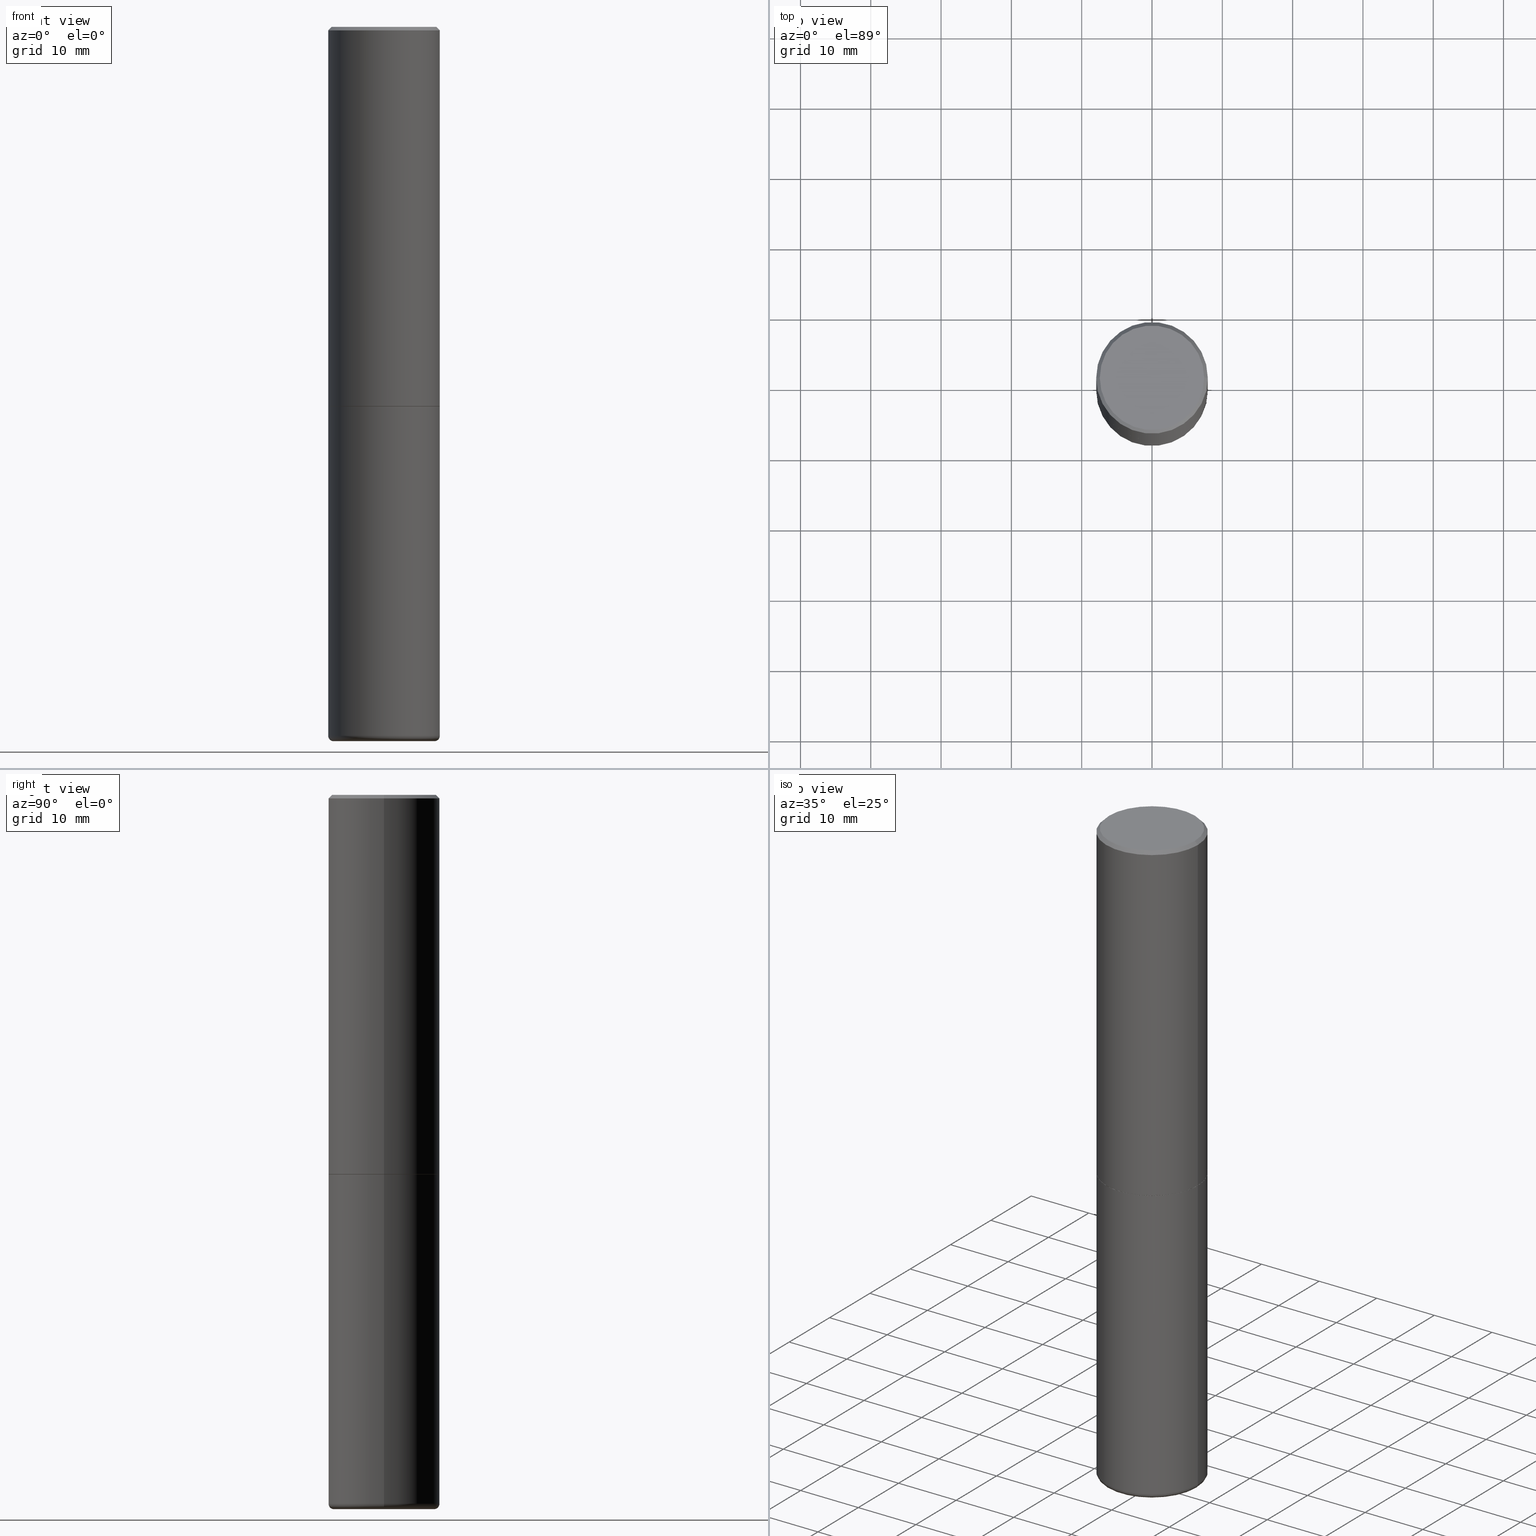
[diagram: canonical four-view strip — front | top / right | iso, engineering-drawing reading convention]
A machine part, canonical four-view strip (front | top / right | iso — engineering-drawing reading convention). The complete STEP part file that produces these views, byte-faithful:
ISO-10303-21;
HEADER;
FILE_DESCRIPTION (( 'STEP AP203' ),
    '1' );
FILE_NAME ('77392.STEP',
    '2024-05-02T19:35:23',
    ( '' ),
    ( '' ),
    'SwSTEP 2.0',
    'SolidWorks 2023',
    '' );
FILE_SCHEMA (( 'CONFIG_CONTROL_DESIGN' ));
ENDSEC;

DATA;
#1 = PERSON_AND_ORGANIZATION ( #171, #299 ) ;
#2 = DIRECTION ( 'NONE',  ( 1.000000000000000000, -6.982962677686269077E-15, 0.000000000000000000 ) ) ;
#3 = COORDINATED_UNIVERSAL_TIME_OFFSET ( 5, 0, .BEHIND. ) ;
#4 = CLOSED_SHELL ( 'NONE', ( #321, #278, #304, #398, #38, #393, #376, #82 ) ) ;
#5 = CARTESIAN_POINT ( 'NONE',  ( 0.3114999999999999991, -9.594590719140955956E-15, -2.125000000000000000 ) ) ;
#6 = FACE_OUTER_BOUND ( 'NONE', #79, .T. ) ;
#7 = CARTESIAN_POINT ( 'NONE',  ( 5.196621213143415268E-29, -7.419397845041683624E-15, -2.125000000000000000 ) ) ;
#8 = VERTEX_POINT ( 'NONE', #352 ) ;
#9 = AXIS2_PLACEMENT_3D ( 'NONE', #15, #369, #39 ) ;
#10 = EDGE_CURVE ( 'NONE', #112, #45, #99, .T. ) ;
#11 = DIRECTION ( 'NONE',  ( 1.000000000000000000, -6.982962677686265922E-15, 0.000000000000000000 ) ) ;
#12 = ORIENTED_EDGE ( 'NONE', *, *, #386, .F. ) ;
#13 = CARTESIAN_POINT ( 'NONE',  ( 5.196621213143415268E-29, -7.419397845041683624E-15, -2.125000000000000000 ) ) ;
#14 = EDGE_CURVE ( 'NONE', #8, #317, #253, .T. ) ;
#15 = CARTESIAN_POINT ( 'NONE',  ( 0.000000000000000000, 0.000000000000000000, 0.000000000000000000 ) ) ;
#16 = CARTESIAN_POINT ( 'NONE',  ( 9.708511160554992872E-29, -1.386118091520728738E-14, -3.970000000000000195 ) ) ;
#17 = ADVANCED_FACE ( 'NONE', ( #221 ), #187, .T. ) ;
#18 =( NAMED_UNIT ( * ) SI_UNIT ( $, .STERADIAN. ) SOLID_ANGLE_UNIT ( ) );
#19 = ORIENTED_EDGE ( 'NONE', *, *, #405, .F. ) ;
#20 = DIRECTION ( 'NONE',  ( 0.000000000000000000, 0.000000000000000000, 1.000000000000000000 ) ) ;
#21 = ORIENTED_EDGE ( 'NONE', *, *, #244, .F. ) ;
#22 = AXIS2_PLACEMENT_3D ( 'NONE', #312, #73, #11 ) ;
#23 = DATE_AND_TIME ( #318, #121 ) ;
#24 = ORIENTED_EDGE ( 'NONE', *, *, #374, .F. ) ;
#25 = EDGE_CURVE ( 'NONE', #154, #322, #57, .T. ) ;
#26 = ORIENTED_EDGE ( 'NONE', *, *, #93, .F. ) ;
#27 =( NAMED_UNIT ( * ) PLANE_ANGLE_UNIT ( ) SI_UNIT ( $, .RADIAN. ) );
#28 = ORIENTED_EDGE ( 'NONE', *, *, #264, .F. ) ;
#29 = AXIS2_PLACEMENT_3D ( 'NONE', #404, #342, #303 ) ;
#30 = DIRECTION ( 'NONE',  ( -2.445468806185136597E-29, 3.491481338843145583E-15, 1.000000000000000000 ) ) ;
#31 = CARTESIAN_POINT ( 'NONE',  ( -0.2825000000000000289, -1.179968849640363848E-14, -4.000000000000000000 ) ) ;
#32 = PERSON_AND_ORGANIZATION ( #171, #299 ) ;
#33 = CARTESIAN_POINT ( 'NONE',  ( 0.2925000000000002043, -2.110215457714321114E-15, -2.006200870347048687E-16 ) ) ;
#34 = AXIS2_PLACEMENT_3D ( 'NONE', #243, #78, #311 ) ;
#35 = APPROVAL_PERSON_ORGANIZATION ( #251, #174, #215 ) ;
#36 = PRODUCT_RELATED_PRODUCT_CATEGORY ( 'detail', '', ( #173 ) ) ;
#37 = FACE_OUTER_BOUND ( 'NONE', #92, .T. ) ;
#38 = ADVANCED_FACE ( 'NONE', ( #392 ), #268, .T. ) ;
#39 = DIRECTION ( 'NONE',  ( 1.000000000000000000, -6.982962677686266711E-15, 4.876176775795935232E-29 ) ) ;
#40 = DIRECTION ( 'NONE',  ( -2.445468806185136597E-29, 3.491481338843145583E-15, 1.000000000000000000 ) ) ;
#41 = VERTEX_POINT ( 'NONE', #331 ) ;
#42 = CIRCLE ( 'NONE', #377, 0.2925000000000002043 ) ;
#43 = APPLICATION_CONTEXT ( 'configuration controlled 3d designs of mechanical parts and assemblies' ) ;
#44 = FACE_OUTER_BOUND ( 'NONE', #324, .T. ) ;
#45 = VERTEX_POINT ( 'NONE', #33 ) ;
#46 = CARTESIAN_POINT ( 'NONE',  ( 4.890937612370289799E-31, -6.982962677686315028E-17, -0.02000000000000006981 ) ) ;
#47 = PLANE ( 'NONE',  #49 ) ;
#48 = CIRCLE ( 'NONE', #403, 0.3114999999999999991 ) ;
#49 = AXIS2_PLACEMENT_3D ( 'NONE', #77, #375, #107 ) ;
#50 = LINE ( 'NONE', #413, #293 ) ;
#51 = VERTEX_POINT ( 'NONE', #261 ) ;
#52 = CALENDAR_DATE ( 2024, 2, 5 ) ;
#53 = DIRECTION ( 'NONE',  ( 1.000000000000000000, -6.982962677686266711E-15, 4.873475059489872853E-29 ) ) ;
#54 = EDGE_CURVE ( 'NONE', #322, #154, #63, .T. ) ;
#55 = PERSON_AND_ORGANIZATION ( #171, #299 ) ;
#56 = ORIENTED_EDGE ( 'NONE', *, *, #244, .T. ) ;
#57 = CIRCLE ( 'NONE', #269, 0.3125000000000000000 ) ;
#58 = AXIS2_PLACEMENT_3D ( 'NONE', #341, #246, #397 ) ;
#59 = DIRECTION ( 'NONE',  ( 1.000000000000000000, -6.982962677686266711E-15, 0.000000000000000000 ) ) ;
#60 = VERTEX_POINT ( 'NONE', #362 ) ;
#61 = ORIENTED_EDGE ( 'NONE', *, *, #10, .F. ) ;
#62 = PLANE ( 'NONE',  #162 ) ;
#63 = CIRCLE ( 'NONE', #349, 0.3125000000000000000 ) ;
#64 = VECTOR ( 'NONE', #198, 39.37007874015748143 ) ;
#65 = COORDINATED_UNIVERSAL_TIME_OFFSET ( 5, 0, .BEHIND. ) ;
#66 = DIRECTION ( 'NONE',  ( -2.445468806185136597E-29, 3.491481338843145583E-15, 1.000000000000000000 ) ) ;
#67 = PERSON_AND_ORGANIZATION_ROLE ( 'classification_officer' ) ;
#68 = CARTESIAN_POINT ( 'NONE',  ( 0.000000000000000000, 0.000000000000000000, 0.000000000000000000 ) ) ;
#69 = LINE ( 'NONE', #193, #71 ) ;
#70 = CARTESIAN_POINT ( 'NONE',  ( 0.000000000000000000, 0.000000000000000000, 0.000000000000000000 ) ) ;
#71 = VECTOR ( 'NONE', #301, 39.37007874015748143 ) ;
#72 = CC_DESIGN_PERSON_AND_ORGANIZATION_ASSIGNMENT ( #55, #126, ( #173 ) ) ;
#73 = DIRECTION ( 'NONE',  ( -2.445468806185136597E-29, 3.491481338843145583E-15, 1.000000000000000000 ) ) ;
#74 = FACE_OUTER_BOUND ( 'NONE', #285, .T. ) ;
#75 = ORIENTED_EDGE ( 'NONE', *, *, #396, .T. ) ;
#76 = UNCERTAINTY_MEASURE_WITH_UNIT (LENGTH_MEASURE( 1.000000000000000082E-05 ), #415, 'distance_accuracy_value', 'NONE');
#77 = CARTESIAN_POINT ( 'NONE',  ( 5.196621213143415268E-29, -7.419397845041683624E-15, -2.125000000000000000 ) ) ;
#78 = DIRECTION ( 'NONE',  ( 2.438088387897960049E-29, -3.491481338843145188E-15, -1.000000000000000000 ) ) ;
#79 = EDGE_LOOP ( 'NONE', ( #142, #310, #157, #26 ) ) ;
#80 = EDGE_CURVE ( 'NONE', #45, #317, #136, .T. ) ;
#81 = CARTESIAN_POINT ( 'NONE',  ( 9.781875224740546387E-29, -1.396592535537258233E-14, -4.000000000000000000 ) ) ;
#82 = ADVANCED_FACE ( 'NONE', ( #37 ), #62, .F. ) ;
#83 = DIRECTION ( 'NONE',  ( -2.445468806185136597E-29, 3.491481338843145583E-15, 1.000000000000000000 ) ) ;
#84 = LOCAL_TIME ( 15, 35, 23.00000000000000000, #407 ) ;
#85 = EDGE_LOOP ( 'NONE', ( #245, #412, #417, #353 ) ) ;
#86 = COORDINATED_UNIVERSAL_TIME_OFFSET ( 5, 0, .BEHIND. ) ;
#87 = ORIENTED_EDGE ( 'NONE', *, *, #405, .T. ) ;
#88 = ORIENTED_EDGE ( 'NONE', *, *, #14, .F. ) ;
#89 = VECTOR ( 'NONE', #262, 39.37007874015748143 ) ;
#90 =( GEOMETRIC_REPRESENTATION_CONTEXT ( 3 ) GLOBAL_UNCERTAINTY_ASSIGNED_CONTEXT ( ( #76 ) ) GLOBAL_UNIT_ASSIGNED_CONTEXT ( ( #415, #27, #18 ) ) REPRESENTATION_CONTEXT ( 'NONE', 'WORKASPACE' ) );
#91 = DIRECTION ( 'NONE',  ( -2.445468806185136877E-29, 3.491481338843145188E-15, 1.000000000000000000 ) ) ;
#92 = EDGE_LOOP ( 'NONE', ( #156, #292 ) ) ;
#93 = EDGE_CURVE ( 'NONE', #179, #322, #265, .T. ) ;
#94 = APPROVAL_ROLE ( '' ) ;
#95 = APPLICATION_CONTEXT ( 'configuration controlled 3d designs of mechanical parts and assemblies' ) ;
#96 = CARTESIAN_POINT ( 'NONE',  ( 5.194175744337229665E-29, -7.415906363702840616E-15, -2.123999999999999666 ) ) ;
#97 = PERSON_AND_ORGANIZATION_ROLE ( 'design_supplier' ) ;
#98 = DIRECTION ( 'NONE',  ( 1.000000000000000000, -6.982962677686266711E-15, 4.876176775795936353E-29 ) ) ;
#99 = CIRCLE ( 'NONE', #283, 0.2925000000000002043 ) ;
#100 = CIRCLE ( 'NONE', #234, 0.02999999999999991909 ) ;
#101 = CARTESIAN_POINT ( 'NONE',  ( 9.781875224740546387E-29, -1.396592535537258233E-14, -4.000000000000000000 ) ) ;
#102 = APPROVAL_DATE_TIME ( #190, #233 ) ;
#103 = CARTESIAN_POINT ( 'NONE',  ( 5.194175744337229665E-29, -7.415906363702840616E-15, -2.123999999999999666 ) ) ;
#104 = CARTESIAN_POINT ( 'NONE',  ( -0.3125000000000000000, -8.419843330874173211E-15, -2.125000000000000000 ) ) ;
#105 = CC_DESIGN_PERSON_AND_ORGANIZATION_ASSIGNMENT ( #137, #67, ( #389 ) ) ;
#106 = AXIS2_PLACEMENT_3D ( 'NONE', #289, #20, #350 ) ;
#107 = DIRECTION ( 'NONE',  ( 1.000000000000000000, -6.982962677686265922E-15, 4.876176775795935793E-29 ) ) ;
#108 = PRODUCT_DEFINITION_FORMATION_WITH_SPECIFIED_SOURCE ( 'ANY', '', #173, .NOT_KNOWN. ) ;
#109 = DIRECTION ( 'NONE',  ( 1.000000000000000000, -6.982962677686266711E-15, 0.000000000000000000 ) ) ;
#110 = CC_DESIGN_PERSON_AND_ORGANIZATION_ASSIGNMENT ( #32, #97, ( #108 ) ) ;
#111 = CARTESIAN_POINT ( 'NONE',  ( -0.3124999999999999445, -1.164073486595697430E-14, -3.970000000000000195 ) ) ;
#112 = VERTEX_POINT ( 'NONE', #232 ) ;
#113 = DIRECTION ( 'NONE',  ( 1.000000000000000000, -6.982962677686265922E-15, 0.000000000000000000 ) ) ;
#114 = ORIENTED_EDGE ( 'NONE', *, *, #163, .T. ) ;
#115 = TOROIDAL_SURFACE ( 'NONE', #189, 0.2825000000000000289, 0.02999999999999993644 ) ;
#116 = DIRECTION ( 'NONE',  ( -2.445468806185136597E-29, 3.491481338843145583E-15, 1.000000000000000000 ) ) ;
#117 = CC_DESIGN_DATE_AND_TIME_ASSIGNMENT ( #361, #300, ( #389 ) ) ;
#118 = DATE_AND_TIME ( #343, #84 ) ;
#119 = ORIENTED_EDGE ( 'NONE', *, *, #80, .F. ) ;
#120 = AXIS2_PLACEMENT_3D ( 'NONE', #16, #40, #147 ) ;
#121 = LOCAL_TIME ( 15, 35, 23.00000000000000000, #180 ) ;
#122 = DATE_TIME_ROLE ( 'creation_date' ) ;
#123 = ORIENTED_EDGE ( 'NONE', *, *, #366, .T. ) ;
#124 = APPROVAL_STATUS ( 'not_yet_approved' ) ;
#125 = ORIENTED_EDGE ( 'NONE', *, *, #358, .F. ) ;
#126 = PERSON_AND_ORGANIZATION_ROLE ( 'design_owner' ) ;
#127 = ORIENTED_EDGE ( 'NONE', *, *, #354, .T. ) ;
#128 = CIRCLE ( 'NONE', #371, 0.3125000000000000000 ) ;
#129 = ORIENTED_EDGE ( 'NONE', *, *, #396, .F. ) ;
#130 = DIRECTION ( 'NONE',  ( 1.000000000000000000, -6.982962677686264344E-15, 4.883557194083112340E-29 ) ) ;
#131 = EDGE_CURVE ( 'NONE', #51, #8, #194, .T. ) ;
#132 = PERSON_AND_ORGANIZATION_ROLE ( 'creator' ) ;
#133 = DIRECTION ( 'NONE',  ( -1.000000000000000000, 6.982962677686265922E-15, -4.876176775795935793E-29 ) ) ;
#134 = CIRCLE ( 'NONE', #360, 0.2825000000000000289 ) ;
#135 = CALENDAR_DATE ( 2024, 2, 5 ) ;
#136 = LINE ( 'NONE', #387, #338 ) ;
#137 = PERSON_AND_ORGANIZATION ( #171, #299 ) ;
#138 = CARTESIAN_POINT ( 'NONE',  ( 9.708511160554992872E-29, -1.386118091520728738E-14, -3.970000000000000195 ) ) ;
#139 = DIRECTION ( 'NONE',  ( 1.000000000000000000, -6.982962677686266711E-15, 4.876176775795935232E-29 ) ) ;
#140 = CIRCLE ( 'NONE', #58, 0.02999999999999991909 ) ;
#141 = DIRECTION ( 'NONE',  ( -2.445468806185136597E-29, 3.491481338843145583E-15, 1.000000000000000000 ) ) ;
#142 = ORIENTED_EDGE ( 'NONE', *, *, #358, .T. ) ;
#143 = CARTESIAN_POINT ( 'NONE',  ( 9.708511160554992872E-29, -1.386118091520728738E-14, -3.970000000000000195 ) ) ;
#144 = MANIFOLD_SOLID_BREP ( 'Body-Move/Copy2[1]', #151 ) ;
#145 = DIRECTION ( 'NONE',  ( 1.000000000000000000, -6.982962677686264344E-15, 0.000000000000000000 ) ) ;
#146 = CARTESIAN_POINT ( 'NONE',  ( 0.3114999999999999991, -9.594590719140955956E-15, -2.125000000000000000 ) ) ;
#147 = DIRECTION ( 'NONE',  ( 1.000000000000000000, -6.982962677686264344E-15, 0.000000000000000000 ) ) ;
#148 = APPROVAL_DATE_TIME ( #118, #296 ) ;
#149 = ORIENTED_EDGE ( 'NONE', *, *, #257, .T. ) ;
#150 = VERTEX_POINT ( 'NONE', #31 ) ;
#151 = CLOSED_SHELL ( 'NONE', ( #229, #155, #406, #17, #200, #329 ) ) ;
#152 = VECTOR ( 'NONE', #363, 39.37007874015748143 ) ;
#153 = LOCAL_TIME ( 15, 35, 23.00000000000000000, #65 ) ;
#154 = VERTEX_POINT ( 'NONE', #104 ) ;
#155 = ADVANCED_FACE ( 'NONE', ( #364 ), #115, .T. ) ;
#156 = ORIENTED_EDGE ( 'NONE', *, *, #10, .T. ) ;
#157 = ORIENTED_EDGE ( 'NONE', *, *, #54, .F. ) ;
#158 = CONICAL_SURFACE ( 'NONE', #210, 0.3125000000000000000, 0.7853981633974471688 ) ;
#159 = DIRECTION ( 'NONE',  ( -2.445468806185136597E-29, 3.491481338843145583E-15, 1.000000000000000000 ) ) ;
#160 = DIRECTION ( 'NONE',  ( 1.000000000000000000, -6.982962677686269077E-15, 0.000000000000000000 ) ) ;
#161 = DIRECTION ( 'NONE',  ( -2.445468806185136597E-29, 3.491481338843145583E-15, 1.000000000000000000 ) ) ;
#162 = AXIS2_PLACEMENT_3D ( 'NONE', #334, #295, #133 ) ;
#163 = EDGE_CURVE ( 'NONE', #8, #51, #351, .T. ) ;
#164 = CONICAL_SURFACE ( 'NONE', #275, 0.3114999999999999991, 0.7853981633975507526 ) ;
#165 = FACE_OUTER_BOUND ( 'NONE', #400, .T. ) ;
#166 = CARTESIAN_POINT ( 'NONE',  ( 0.3125000000000000000, -2.182175836776958347E-15, 1.523805242436230075E-29 ) ) ;
#167 = PLANE ( 'NONE',  #34 ) ;
#168 = DIRECTION ( 'NONE',  ( 1.000000000000000000, -6.982962677686265922E-15, 0.000000000000000000 ) ) ;
#169 = EDGE_LOOP ( 'NONE', ( #274, #24 ) ) ;
#170 = DIRECTION ( 'NONE',  ( 1.000000000000000000, -6.982962677686287221E-15, 0.000000000000000000 ) ) ;
#171 = PERSON ( 'UNSPECIFIED', 'UNSPECIFIED', 'UNSPECIFIED', ('UNSPECIFIED'), ('UNSPECIFIED'), ('UNSPECIFIED') ) ;
#172 = DIRECTION ( 'NONE',  ( -2.445468806185136597E-29, 3.491481338843145583E-15, 1.000000000000000000 ) ) ;
#173 = PRODUCT ( '77392', '77392', '', ( #346 ) ) ;
#174 = APPROVAL ( #381, 'UNSPECIFIED' ) ;
#175 = DIRECTION ( 'NONE',  ( 2.445468806185136597E-29, -3.491481338843145583E-15, -1.000000000000000000 ) ) ;
#176 = TOROIDAL_SURFACE ( 'NONE', #395, 0.2825000000000000289, 0.02999999999999993644 ) ;
#177 = CARTESIAN_POINT ( 'NONE',  ( 4.890937612370289799E-31, -6.982962677686315028E-17, -0.02000000000000006981 ) ) ;
#178 = ORIENTED_EDGE ( 'NONE', *, *, #390, .T. ) ;
#179 = VERTEX_POINT ( 'NONE', #359 ) ;
#180 = COORDINATED_UNIVERSAL_TIME_OFFSET ( 5, 0, .BEHIND. ) ;
#181 = ORIENTED_EDGE ( 'NONE', *, *, #54, .T. ) ;
#182 = AXIS2_PLACEMENT_3D ( 'NONE', #186, #83, #59 ) ;
#183 = FACE_OUTER_BOUND ( 'NONE', #416, .T. ) ;
#184 = ORIENTED_EDGE ( 'NONE', *, *, #374, .T. ) ;
#185 = CC_DESIGN_PERSON_AND_ORGANIZATION_ASSIGNMENT ( #228, #132, ( #108 ) ) ;
#186 = CARTESIAN_POINT ( 'NONE',  ( 4.890937612370289799E-31, -6.982962677686315028E-17, -0.02000000000000006981 ) ) ;
#187 = CYLINDRICAL_SURFACE ( 'NONE', #291, 0.3125000000000000000 ) ;
#188 = CARTESIAN_POINT ( 'NONE',  ( 9.708511160554992872E-29, -1.386118091520728738E-14, -3.970000000000000195 ) ) ;
#189 = AXIS2_PLACEMENT_3D ( 'NONE', #138, #161, #130 ) ;
#190 = DATE_AND_TIME ( #135, #236 ) ;
#191 = DIRECTION ( 'NONE',  ( -2.445468806185136597E-29, 3.491481338843145583E-15, 1.000000000000000000 ) ) ;
#192 = CARTESIAN_POINT ( 'NONE',  ( 0.000000000000000000, 0.000000000000000000, 0.000000000000000000 ) ) ;
#193 = CARTESIAN_POINT ( 'NONE',  ( -0.3114999999999999991, -5.206057223148971551E-15, -2.125000000000000000 ) ) ;
#194 = CIRCLE ( 'NONE', #256, 0.3125000000000002776 ) ;
#195 = EDGE_CURVE ( 'NONE', #41, #150, #134, .T. ) ;
#196 = AXIS2_PLACEMENT_3D ( 'NONE', #213, #220, #323 ) ;
#197 = CARTESIAN_POINT ( 'NONE',  ( 5.196621213143415268E-29, -7.419397845041683624E-15, -2.125000000000000000 ) ) ;
#198 = DIRECTION ( 'NONE',  ( -2.445468806185136877E-29, 3.491481338843145188E-15, 1.000000000000000000 ) ) ;
#199 = DIRECTION ( 'NONE',  ( -2.445468806185136597E-29, 3.491481338843145583E-15, 1.000000000000000000 ) ) ;
#200 = ADVANCED_FACE ( 'NONE', ( #165 ), #176, .T. ) ;
#201 = AXIS2_PLACEMENT_3D ( 'NONE', #70, #116, #368 ) ;
#202 = CARTESIAN_POINT ( 'NONE',  ( -0.3125000000000000000, 2.112346210000095443E-15, -0.02000000000000006981 ) ) ;
#203 = PRODUCT_DEFINITION_SHAPE ( 'NONE', 'NONE',  #288 ) ;
#204 = CARTESIAN_POINT ( 'NONE',  ( 4.906101647375534649E-45, -7.004612900788104277E-31, -2.006200870347193887E-16 ) ) ;
#205 = CC_DESIGN_PERSON_AND_ORGANIZATION_ASSIGNMENT ( #280, #249, ( #288 ) ) ;
#206 = CARTESIAN_POINT ( 'NONE',  ( 0.3125000000000000000, -2.213735251080466911E-15, -0.02000000000000006981 ) ) ;
#207 = EDGE_LOOP ( 'NONE', ( #385, #149, #125, #409 ) ) ;
#208 = EDGE_CURVE ( 'NONE', #281, #8, #230, .T. ) ;
#209 = APPLICATION_PROTOCOL_DEFINITION ( 'international standard', 'config_control_design', 1994, #43 ) ;
#210 = AXIS2_PLACEMENT_3D ( 'NONE', #46, #175, #307 ) ;
#211 = ORIENTED_EDGE ( 'NONE', *, *, #354, .F. ) ;
#212 = CC_DESIGN_APPROVAL ( #233, ( #389 ) ) ;
#213 = CARTESIAN_POINT ( 'NONE',  ( 5.196621213143415268E-29, -7.419397845041683624E-15, -2.125000000000000000 ) ) ;
#214 = EDGE_LOOP ( 'NONE', ( #19, #216, #344, #21 ) ) ;
#215 = APPROVAL_ROLE ( '' ) ;
#216 = ORIENTED_EDGE ( 'NONE', *, *, #131, .T. ) ;
#217 = PLANE ( 'NONE',  #196 ) ;
#218 = DIRECTION ( 'NONE',  ( -2.445468806185136877E-29, 3.491481338843145188E-15, 1.000000000000000000 ) ) ;
#219 = VECTOR ( 'NONE', #391, 39.37007874015748143 ) ;
#220 = DIRECTION ( 'NONE',  ( 2.438088387897960049E-29, -3.491481338843145188E-15, -1.000000000000000000 ) ) ;
#221 = FACE_OUTER_BOUND ( 'NONE', #347, .T. ) ;
#222 = EDGE_CURVE ( 'NONE', #112, #380, #231, .T. ) ;
#223 = DIMENSIONAL_EXPONENTS ( 1.000000000000000000, 0.000000000000000000, 0.000000000000000000, 0.000000000000000000, 0.000000000000000000, 0.000000000000000000, 0.000000000000000000 ) ;
#224 = DIRECTION ( 'NONE',  ( -2.445468806185136597E-29, 3.491481338843145583E-15, 1.000000000000000000 ) ) ;
#225 = EDGE_CURVE ( 'NONE', #60, #51, #69, .T. ) ;
#226 = DIRECTION ( 'NONE',  ( -2.445468806185136597E-29, 3.491481338843145583E-15, 1.000000000000000000 ) ) ;
#227 = CC_DESIGN_APPROVAL ( #174, ( #108 ) ) ;
#228 = PERSON_AND_ORGANIZATION ( #171, #299 ) ;
#229 = ADVANCED_FACE ( 'NONE', ( #6 ), #267, .T. ) ;
#230 = LINE ( 'NONE', #5, #219 ) ;
#231 = LINE ( 'NONE', #326, #152 ) ;
#232 = CARTESIAN_POINT ( 'NONE',  ( -0.2925000000000002043, 2.077431396611664583E-15, -2.006200870347337854E-16 ) ) ;
#233 = APPROVAL ( #259, 'UNSPECIFIED' ) ;
#234 = AXIS2_PLACEMENT_3D ( 'NONE', #340, #271, #170 ) ;
#235 = CIRCLE ( 'NONE', #120, 0.3124999999999999445 ) ;
#236 = LOCAL_TIME ( 15, 35, 23.00000000000000000, #3 ) ;
#237 = LINE ( 'NONE', #367, #64 ) ;
#238 = FACE_OUTER_BOUND ( 'NONE', #85, .T. ) ;
#239 = ORIENTED_EDGE ( 'NONE', *, *, #222, .T. ) ;
#240 = FACE_OUTER_BOUND ( 'NONE', #287, .T. ) ;
#241 = VECTOR ( 'NONE', #218, 39.37007874015748143 ) ;
#242 = AXIS2_PLACEMENT_3D ( 'NONE', #81, #276, #399 ) ;
#243 = CARTESIAN_POINT ( 'NONE',  ( 9.781875224740546387E-29, -1.396592535537258233E-14, -4.000000000000000000 ) ) ;
#244 = EDGE_CURVE ( 'NONE', #380, #317, #128, .T. ) ;
#245 = ORIENTED_EDGE ( 'NONE', *, *, #247, .T. ) ;
#246 = DIRECTION ( 'NONE',  ( 7.105427357601001859E-15, 1.000000000000000000, -3.491481338843145583E-15 ) ) ;
#247 = EDGE_CURVE ( 'NONE', #281, #60, #48, .T. ) ;
#248 = DIRECTION ( 'NONE',  ( -1.000000000000000000, 6.982962677686266711E-15, 0.000000000000000000 ) ) ;
#249 = PERSON_AND_ORGANIZATION_ROLE ( 'creator' ) ;
#250 = DIRECTION ( 'NONE',  ( -2.445468806185136597E-29, 3.491481338843145583E-15, 1.000000000000000000 ) ) ;
#251 = PERSON_AND_ORGANIZATION ( #171, #299 ) ;
#252 = ORIENTED_EDGE ( 'NONE', *, *, #25, .T. ) ;
#253 = LINE ( 'NONE', #255, #241 ) ;
#254 = APPROVAL_ROLE ( '' ) ;
#255 = CARTESIAN_POINT ( 'NONE',  ( 0.3125000000000001665, -2.182175836776959530E-15, 1.523805242436230636E-29 ) ) ;
#256 = AXIS2_PLACEMENT_3D ( 'NONE', #103, #388, #160 ) ;
#257 = EDGE_CURVE ( 'NONE', #150, #370, #140, .T. ) ;
#258 = CC_DESIGN_APPROVAL ( #296, ( #288 ) ) ;
#259 = APPROVAL_STATUS ( 'not_yet_approved' ) ;
#260 = ORIENTED_EDGE ( 'NONE', *, *, #25, .F. ) ;
#261 = CARTESIAN_POINT ( 'NONE',  ( -0.3125000000000002776, -1.522421945989534932E-15, -2.123999999999999666 ) ) ;
#262 = DIRECTION ( 'NONE',  ( -2.445468806185136877E-29, 3.491481338843145188E-15, 1.000000000000000000 ) ) ;
#263 = AXIS2_PLACEMENT_3D ( 'NONE', #177, #379, #248 ) ;
#264 = EDGE_CURVE ( 'NONE', #370, #154, #237, .T. ) ;
#265 = LINE ( 'NONE', #166, #89 ) ;
#266 = CALENDAR_DATE ( 2024, 2, 5 ) ;
#267 = CYLINDRICAL_SURFACE ( 'NONE', #201, 0.3125000000000000000 ) ;
#268 = CYLINDRICAL_SURFACE ( 'NONE', #305, 0.3125000000000001665 ) ;
#269 = AXIS2_PLACEMENT_3D ( 'NONE', #330, #191, #302 ) ;
#270 = APPROVAL_PERSON_ORGANIZATION ( #279, #296, #254 ) ;
#271 = DIRECTION ( 'NONE',  ( -6.982962677686266711E-15, -1.000000000000000000, 3.491481338843145583E-15 ) ) ;
#272 = DIRECTION ( 'NONE',  ( -2.445468806185136597E-29, 3.491481338843145583E-15, 1.000000000000000000 ) ) ;
#273 = DIRECTION ( 'NONE',  ( 1.000000000000000000, -6.982962677686266711E-15, 4.873475059489872853E-29 ) ) ;
#274 = ORIENTED_EDGE ( 'NONE', *, *, #247, .F. ) ;
#275 = AXIS2_PLACEMENT_3D ( 'NONE', #13, #401, #113 ) ;
#276 = DIRECTION ( 'NONE',  ( -2.445468806185136597E-29, 3.491481338843145583E-15, 1.000000000000000000 ) ) ;
#277 = APPROVAL_PERSON_ORGANIZATION ( #1, #233, #94 ) ;
#278 = ADVANCED_FACE ( 'NONE', ( #44 ), #372, .T. ) ;
#279 = PERSON_AND_ORGANIZATION ( #171, #299 ) ;
#280 = PERSON_AND_ORGANIZATION ( #171, #299 ) ;
#281 = VERTEX_POINT ( 'NONE', #146 ) ;
#282 = MANIFOLD_SOLID_BREP ( 'Body-Move/Copy2[2]', #4 ) ;
#283 = AXIS2_PLACEMENT_3D ( 'NONE', #384, #250, #53 ) ;
#284 = CIRCLE ( 'NONE', #29, 0.3114999999999999991 ) ;
#285 = EDGE_LOOP ( 'NONE', ( #12, #402, #75, #382 ) ) ;
#286 = FACE_OUTER_BOUND ( 'NONE', #345, .T. ) ;
#287 = EDGE_LOOP ( 'NONE', ( #337, #320 ) ) ;
#288 = PRODUCT_DEFINITION ( 'UNKNOWN', '', #108, #313 ) ;
#289 = CARTESIAN_POINT ( 'NONE',  ( 0.000000000000000000, 0.000000000000000000, 0.000000000000000000 ) ) ;
#290 = ORIENTED_EDGE ( 'NONE', *, *, #225, .F. ) ;
#291 = AXIS2_PLACEMENT_3D ( 'NONE', #68, #159, #98 ) ;
#292 = ORIENTED_EDGE ( 'NONE', *, *, #386, .T. ) ;
#293 = VECTOR ( 'NONE', #91, 39.37007874015748143 ) ;
#294 = CC_DESIGN_SECURITY_CLASSIFICATION ( #389, ( #108 ) ) ;
#295 = DIRECTION ( 'NONE',  ( 2.438088387897960049E-29, -3.491481338843145188E-15, -1.000000000000000000 ) ) ;
#296 = APPROVAL ( #124, 'UNSPECIFIED' ) ;
#297 = DIRECTION ( 'NONE',  ( 1.000000000000000000, -6.982962677686264344E-15, 4.883557194083112340E-29 ) ) ;
#298 = DIRECTION ( 'NONE',  ( 1.000000000000000000, -6.982962677686269077E-15, 0.000000000000000000 ) ) ;
#299 = ORGANIZATION ( 'UNSPECIFIED', 'UNSPECIFIED', '' ) ;
#300 = DATE_TIME_ROLE ( 'classification_date' ) ;
#301 = DIRECTION ( 'NONE',  ( -0.7071067811866199593, 7.493145998870616062E-15, 0.7071067811864750752 ) ) ;
#302 = DIRECTION ( 'NONE',  ( 1.000000000000000000, -6.982962677686269077E-15, 0.000000000000000000 ) ) ;
#303 = DIRECTION ( 'NONE',  ( 1.000000000000000000, -6.982962677686265922E-15, 0.000000000000000000 ) ) ;
#304 = ADVANCED_FACE ( 'NONE', ( #74 ), #158, .T. ) ;
#305 = AXIS2_PLACEMENT_3D ( 'NONE', #192, #66, #139 ) ;
#306 = CONICAL_SURFACE ( 'NONE', #22, 0.3114999999999999991, 0.7853981633975507526 ) ;
#307 = DIRECTION ( 'NONE',  ( -1.000000000000000000, 6.982962677686266711E-15, 0.000000000000000000 ) ) ;
#308 = EDGE_LOOP ( 'NONE', ( #290, #184, #315, #373 ) ) ;
#309 = FACE_OUTER_BOUND ( 'NONE', #308, .T. ) ;
#310 = ORIENTED_EDGE ( 'NONE', *, *, #264, .T. ) ;
#311 = DIRECTION ( 'NONE',  ( -1.000000000000000000, 6.982962677686265922E-15, -4.876176775795935793E-29 ) ) ;
#312 = CARTESIAN_POINT ( 'NONE',  ( 5.196621213143415268E-29, -7.419397845041683624E-15, -2.125000000000000000 ) ) ;
#313 = DESIGN_CONTEXT ( 'detailed design', #43, 'design' ) ;
#314 =( LENGTH_UNIT ( ) NAMED_UNIT ( * ) SI_UNIT ( $, .METRE. ) );
#315 = ORIENTED_EDGE ( 'NONE', *, *, #208, .T. ) ;
#316 = LENGTH_MEASURE_WITH_UNIT ( LENGTH_MEASURE( 0.02539999999999999897 ), #314 );
#317 = VERTEX_POINT ( 'NONE', #206 ) ;
#318 = CALENDAR_DATE ( 2024, 2, 5 ) ;
#319 = AXIS2_PLACEMENT_3D ( 'NONE', #143, #272, #145 ) ;
#320 = ORIENTED_EDGE ( 'NONE', *, *, #366, .F. ) ;
#321 = ADVANCED_FACE ( 'NONE', ( #238 ), #306, .T. ) ;
#322 = VERTEX_POINT ( 'NONE', #335 ) ;
#323 = DIRECTION ( 'NONE',  ( -1.000000000000000000, 6.982962677686265922E-15, -4.876176775795935793E-29 ) ) ;
#324 = EDGE_LOOP ( 'NONE', ( #114, #87, #129, #88 ) ) ;
#325 = SECURITY_CLASSIFICATION_LEVEL ( 'unclassified' ) ;
#326 = CARTESIAN_POINT ( 'NONE',  ( -0.3125000000000000000, 2.112346210000095443E-15, -0.02000000000000006981 ) ) ;
#327 = CONICAL_SURFACE ( 'NONE', #263, 0.3125000000000000000, 0.7853981633974471688 ) ;
#328 = DIRECTION ( 'NONE',  ( 0.7071067811865466846, -7.319954787623252890E-15, -0.7071067811865483499 ) ) ;
#329 = ADVANCED_FACE ( 'NONE', ( #240 ), #167, .T. ) ;
#330 = CARTESIAN_POINT ( 'NONE',  ( 5.196621213143415268E-29, -7.419397845041683624E-15, -2.125000000000000000 ) ) ;
#331 = CARTESIAN_POINT ( 'NONE',  ( 0.2825000000000000289, -1.593861231181895394E-14, -4.000000000000000000 ) ) ;
#332 = LOCAL_TIME ( 15, 35, 23.00000000000000000, #86 ) ;
#333 = CC_DESIGN_DATE_AND_TIME_ASSIGNMENT ( #411, #122, ( #288 ) ) ;
#334 = CARTESIAN_POINT ( 'NONE',  ( 2.042516583223234117E-15, 0.2925000000000002043, -1.121568335128980438E-15 ) ) ;
#335 = CARTESIAN_POINT ( 'NONE',  ( 0.3125000000000000000, -9.601573681818641971E-15, -2.125000000000000000 ) ) ;
#336 = CARTESIAN_POINT ( 'NONE',  ( 4.890937612370289799E-31, -6.982962677686315028E-17, -0.02000000000000006981 ) ) ;
#337 = ORIENTED_EDGE ( 'NONE', *, *, #195, .F. ) ;
#338 = VECTOR ( 'NONE', #328, 39.37007874015748143 ) ;
#339 = CIRCLE ( 'NONE', #182, 0.3125000000000000000 ) ;
#340 = CARTESIAN_POINT ( 'NONE',  ( 0.2825000000000000289, -1.583386787165366057E-14, -3.970000000000000195 ) ) ;
#341 = CARTESIAN_POINT ( 'NONE',  ( -0.2825000000000000289, -1.185389768668500455E-14, -3.970000000000000195 ) ) ;
#342 = DIRECTION ( 'NONE',  ( -2.445468806185136597E-29, 3.491481338843145583E-15, 1.000000000000000000 ) ) ;
#343 = CALENDAR_DATE ( 2024, 2, 5 ) ;
#344 = ORIENTED_EDGE ( 'NONE', *, *, #14, .T. ) ;
#345 = EDGE_LOOP ( 'NONE', ( #119, #61, #239, #56 ) ) ;
#346 = MECHANICAL_CONTEXT ( 'NONE', #95, 'mechanical' ) ;
#347 = EDGE_LOOP ( 'NONE', ( #28, #127, #414, #260 ) ) ;
#348 = ADVANCED_BREP_SHAPE_REPRESENTATION ( '77392', ( #144, #282, #106 ), #90 ) ;
#349 = AXIS2_PLACEMENT_3D ( 'NONE', #197, #30, #2 ) ;
#350 = DIRECTION ( 'NONE',  ( 1.000000000000000000, 0.000000000000000000, 0.000000000000000000 ) ) ;
#351 = CIRCLE ( 'NONE', #365, 0.3125000000000002776 ) ;
#352 = CARTESIAN_POINT ( 'NONE',  ( 0.3125000000000002776, -9.598082200479802119E-15, -2.123999999999999666 ) ) ;
#353 = ORIENTED_EDGE ( 'NONE', *, *, #208, .F. ) ;
#354 = EDGE_CURVE ( 'NONE', #370, #179, #235, .T. ) ;
#355 = SHAPE_DEFINITION_REPRESENTATION ( #203, #348 ) ;
#356 = DIRECTION ( 'NONE',  ( -2.445468806185136597E-29, 3.491481338843145583E-15, 1.000000000000000000 ) ) ;
#357 = APPROVAL_DATE_TIME ( #23, #174 ) ;
#358 = EDGE_CURVE ( 'NONE', #179, #370, #410, .T. ) ;
#359 = CARTESIAN_POINT ( 'NONE',  ( 0.3124999999999999445, -1.604335675198424415E-14, -3.970000000000000195 ) ) ;
#360 = AXIS2_PLACEMENT_3D ( 'NONE', #101, #224, #298 ) ;
#361 = DATE_AND_TIME ( #266, #153 ) ;
#362 = CARTESIAN_POINT ( 'NONE',  ( -0.3114999999999999991, -5.200758768800747571E-15, -2.125000000000000000 ) ) ;
#363 = DIRECTION ( 'NONE',  ( -0.7071067811865466846, 2.468850131082247989E-15, -0.7071067811865483499 ) ) ;
#364 = FACE_OUTER_BOUND ( 'NONE', #207, .T. ) ;
#365 = AXIS2_PLACEMENT_3D ( 'NONE', #96, #226, #418 ) ;
#366 = EDGE_CURVE ( 'NONE', #150, #41, #383, .T. ) ;
#367 = CARTESIAN_POINT ( 'NONE',  ( -0.3125000000000000000, 2.220446049250313081E-15, -1.537167215704658232E-29 ) ) ;
#368 = DIRECTION ( 'NONE',  ( 1.000000000000000000, -6.982962677686266711E-15, 4.876176775795936353E-29 ) ) ;
#369 = DIRECTION ( 'NONE',  ( -2.445468806185136597E-29, 3.491481338843145583E-15, 1.000000000000000000 ) ) ;
#370 = VERTEX_POINT ( 'NONE', #111 ) ;
#371 = AXIS2_PLACEMENT_3D ( 'NONE', #336, #199, #109 ) ;
#372 = CYLINDRICAL_SURFACE ( 'NONE', #9, 0.3125000000000001665 ) ;
#373 = ORIENTED_EDGE ( 'NONE', *, *, #131, .F. ) ;
#374 = EDGE_CURVE ( 'NONE', #60, #281, #284, .T. ) ;
#375 = DIRECTION ( 'NONE',  ( -2.438088387897960049E-29, 3.491481338843145188E-15, 1.000000000000000000 ) ) ;
#376 = ADVANCED_FACE ( 'NONE', ( #394 ), #47, .F. ) ;
#377 = AXIS2_PLACEMENT_3D ( 'NONE', #204, #141, #273 ) ;
#378 = ORIENTED_EDGE ( 'NONE', *, *, #257, .F. ) ;
#379 = DIRECTION ( 'NONE',  ( 2.445468806185136597E-29, -3.491481338843145583E-15, -1.000000000000000000 ) ) ;
#380 = VERTEX_POINT ( 'NONE', #202 ) ;
#381 = APPROVAL_STATUS ( 'not_yet_approved' ) ;
#382 = ORIENTED_EDGE ( 'NONE', *, *, #222, .F. ) ;
#383 = CIRCLE ( 'NONE', #242, 0.2825000000000000289 ) ;
#384 = CARTESIAN_POINT ( 'NONE',  ( 4.906101647375534649E-45, -7.004612900788104277E-31, -2.006200870347193887E-16 ) ) ;
#385 = ORIENTED_EDGE ( 'NONE', *, *, #195, .T. ) ;
#386 = EDGE_CURVE ( 'NONE', #45, #112, #42, .T. ) ;
#387 = CARTESIAN_POINT ( 'NONE',  ( 0.3125000000000000000, -2.213735251080466911E-15, -0.02000000000000006981 ) ) ;
#388 = DIRECTION ( 'NONE',  ( -2.445468806185136597E-29, 3.491481338843145583E-15, 1.000000000000000000 ) ) ;
#389 = SECURITY_CLASSIFICATION ( '', '', #325 ) ;
#390 = EDGE_CURVE ( 'NONE', #41, #179, #100, .T. ) ;
#391 = DIRECTION ( 'NONE',  ( 0.7071067811866199593, -2.468850131083015945E-15, 0.7071067811864750752 ) ) ;
#392 = FACE_OUTER_BOUND ( 'NONE', #214, .T. ) ;
#393 = ADVANCED_FACE ( 'NONE', ( #309 ), #164, .T. ) ;
#394 = FACE_OUTER_BOUND ( 'NONE', #169, .T. ) ;
#395 = AXIS2_PLACEMENT_3D ( 'NONE', #188, #356, #297 ) ;
#396 = EDGE_CURVE ( 'NONE', #317, #380, #339, .T. ) ;
#397 = DIRECTION ( 'NONE',  ( -1.000000000000000000, 7.105427357601009747E-15, 0.000000000000000000 ) ) ;
#398 = ADVANCED_FACE ( 'NONE', ( #286 ), #327, .T. ) ;
#399 = DIRECTION ( 'NONE',  ( 1.000000000000000000, -6.982962677686269077E-15, 0.000000000000000000 ) ) ;
#400 = EDGE_LOOP ( 'NONE', ( #378, #123, #178, #211 ) ) ;
#401 = DIRECTION ( 'NONE',  ( -2.445468806185136597E-29, 3.491481338843145583E-15, 1.000000000000000000 ) ) ;
#402 = ORIENTED_EDGE ( 'NONE', *, *, #80, .T. ) ;
#403 = AXIS2_PLACEMENT_3D ( 'NONE', #7, #172, #168 ) ;
#404 = CARTESIAN_POINT ( 'NONE',  ( 5.196621213143415268E-29, -7.419397845041683624E-15, -2.125000000000000000 ) ) ;
#405 = EDGE_CURVE ( 'NONE', #51, #380, #50, .T. ) ;
#406 = ADVANCED_FACE ( 'NONE', ( #183 ), #217, .F. ) ;
#407 = COORDINATED_UNIVERSAL_TIME_OFFSET ( 5, 0, .BEHIND. ) ;
#408 = APPLICATION_PROTOCOL_DEFINITION ( 'international standard', 'config_control_design', 1994, #95 ) ;
#409 = ORIENTED_EDGE ( 'NONE', *, *, #390, .F. ) ;
#410 = CIRCLE ( 'NONE', #319, 0.3124999999999999445 ) ;
#411 = DATE_AND_TIME ( #52, #332 ) ;
#412 = ORIENTED_EDGE ( 'NONE', *, *, #225, .T. ) ;
#413 = CARTESIAN_POINT ( 'NONE',  ( -0.3125000000000001665, 2.220446049250314264E-15, -1.537167215704658792E-29 ) ) ;
#414 = ORIENTED_EDGE ( 'NONE', *, *, #93, .T. ) ;
#415 =( CONVERSION_BASED_UNIT ( 'INCH', #316 ) LENGTH_UNIT ( ) NAMED_UNIT ( #223 ) );
#416 = EDGE_LOOP ( 'NONE', ( #181, #252 ) ) ;
#417 = ORIENTED_EDGE ( 'NONE', *, *, #163, .F. ) ;
#418 = DIRECTION ( 'NONE',  ( 1.000000000000000000, -6.982962677686269077E-15, 0.000000000000000000 ) ) ;
ENDSEC;
END-ISO-10303-21;
